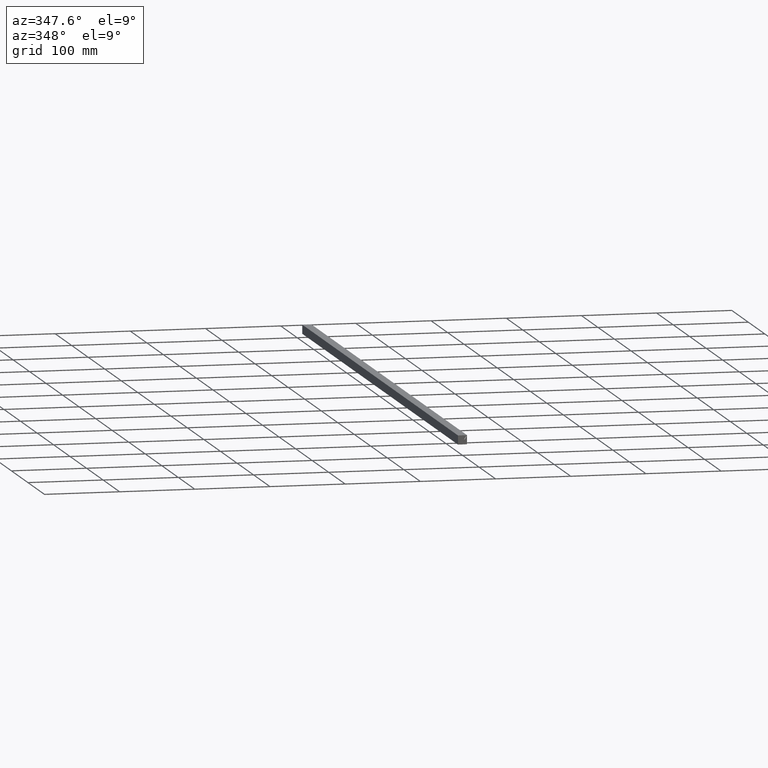
[diagram: clean part render]
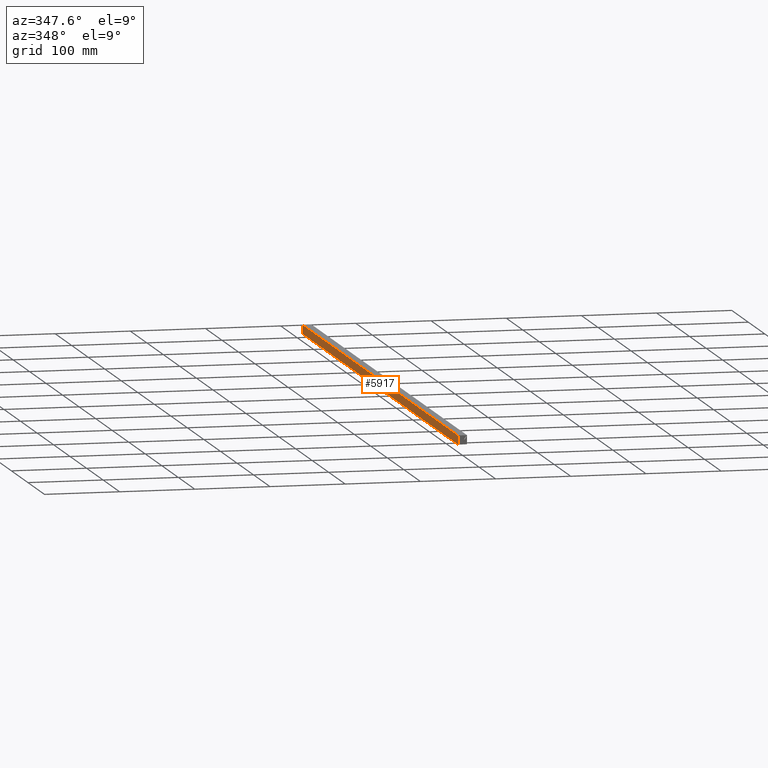
[diagram: same view with one face highlighted and labeled with its STEP entity id]
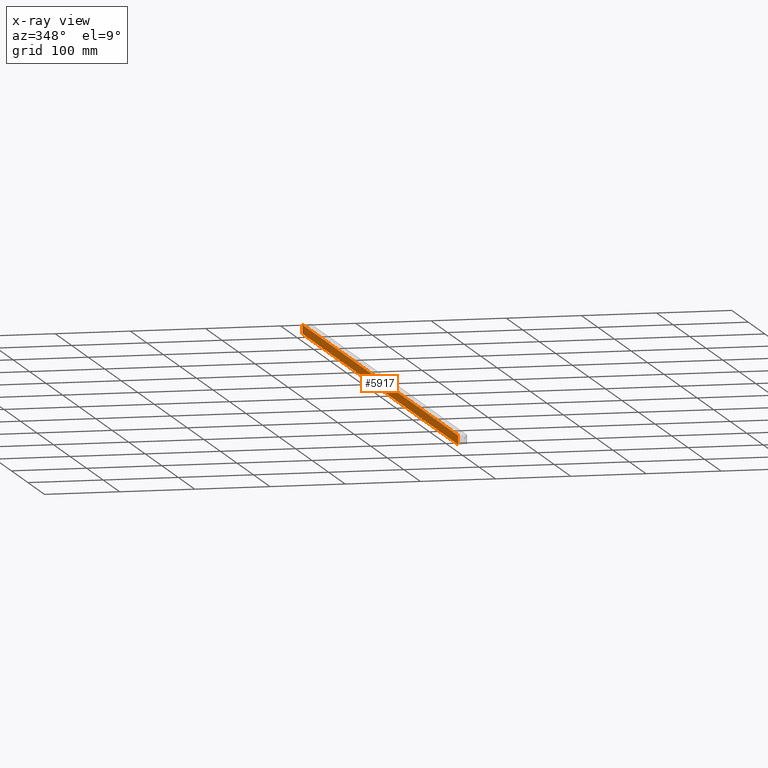
[diagram: x-ray of the same camera — body ghosted, the highlighted face saturated]
A machine part, auxiliary view. The second image highlights one B-rep face of the part: STEP entity #5917.
The next image is the same camera in x-ray: the body ghosted, the highlighted face saturated — about 0% of this face is hidden behind the body in this view.
In plain terms, the highlighted planar face has unit normal (1, 0, -0).
Its self-contained STEP definition (entity closure, byte-faithful):
#543 = CARTESIAN_POINT ( 'NONE',  ( -6.000000000000000888, 0.000000000000000000, -5.999999999999999112 ) ) ;
#666 = CARTESIAN_POINT ( 'NONE',  ( -6.000000000000172307, 942.2000000000000455, -6.000000000000063949 ) ) ;
#883 = VECTOR ( 'NONE', #4135, 1000.000000000000000 ) ;
#963 = VECTOR ( 'NONE', #2397, 1000.000000000000000 ) ;
#1549 = ORIENTED_EDGE ( 'NONE', *, *, #6795, .T. ) ;
#1742 = VERTEX_POINT ( 'NONE', #666 ) ;
#2397 = DIRECTION ( 'NONE',  ( 1.445602896647339410E-16, 0.000000000000000000, 1.000000000000000000 ) ) ;
#2939 = VECTOR ( 'NONE', #7121, 1000.000000000000000 ) ;
#3049 = VECTOR ( 'NONE', #4615, 1000.000000000000000 ) ;
#3135 = VERTEX_POINT ( 'NONE', #9192 ) ;
#3156 = LINE ( 'NONE', #5046, #963 ) ;
#3720 = CARTESIAN_POINT ( 'NONE',  ( -5.999999999999999112, 0.000000000000000000, 5.999999999999999112 ) ) ;
#3744 = CARTESIAN_POINT ( 'NONE',  ( -6.000000000000000888, 950.2000000000000455, -5.999999999999999112 ) ) ;
#4135 = DIRECTION ( 'NONE',  ( -0.000000000000000000, -1.000000000000000000, -0.000000000000000000 ) ) ;
#4564 = ORIENTED_EDGE ( 'NONE', *, *, #10418, .F. ) ;
#4615 = DIRECTION ( 'NONE',  ( -0.000000000000000000, -1.000000000000000000, -0.000000000000000000 ) ) ;
#4737 = AXIS2_PLACEMENT_3D ( 'NONE', #7878, #7497, #6238 ) ;
#4803 = EDGE_CURVE ( 'NONE', #1742, #3135, #8504, .T. ) ;
#5046 = CARTESIAN_POINT ( 'NONE',  ( -6.000000000000000888, 0.000000000000000000, -5.999999999999999112 ) ) ;
#5544 = LINE ( 'NONE', #6678, #883 ) ;
#5748 = VERTEX_POINT ( 'NONE', #3720 ) ;
#5917 = ADVANCED_FACE ( 'NONE', ( #7383 ), #7843, .F. ) ;
#6238 = DIRECTION ( 'NONE',  ( -1.445602896647339410E-16, 0.000000000000000000, -1.000000000000000000 ) ) ;
#6678 = CARTESIAN_POINT ( 'NONE',  ( -5.999999999999999112, 950.2000000000000455, 5.999999999999999112 ) ) ;
#6795 = EDGE_CURVE ( 'NONE', #1742, #8581, #9301, .T. ) ;
#7010 = ORIENTED_EDGE ( 'NONE', *, *, #4803, .F. ) ;
#7121 = DIRECTION ( 'NONE',  ( -0.000000000000000000, -0.000000000000000000, 1.000000000000000000 ) ) ;
#7383 = FACE_OUTER_BOUND ( 'NONE', #9096, .T. ) ;
#7497 = DIRECTION ( 'NONE',  ( 1.000000000000000000, 0.000000000000000000, -1.445602896647339410E-16 ) ) ;
#7843 = PLANE ( 'NONE',  #4737 ) ;
#7878 = CARTESIAN_POINT ( 'NONE',  ( -6.000000000000000888, 950.2000000000000455, -5.999999999999999112 ) ) ;
#8105 = ORIENTED_EDGE ( 'NONE', *, *, #8674, .T. ) ;
#8504 = LINE ( 'NONE', #9771, #2939 ) ;
#8581 = VERTEX_POINT ( 'NONE', #543 ) ;
#8674 = EDGE_CURVE ( 'NONE', #8581, #5748, #3156, .T. ) ;
#9096 = EDGE_LOOP ( 'NONE', ( #7010, #1549, #8105, #4564 ) ) ;
#9192 = CARTESIAN_POINT ( 'NONE',  ( -6.000000000000143885, 942.2000000000000455, 5.999999999999999112 ) ) ;
#9301 = LINE ( 'NONE', #3744, #3049 ) ;
#9771 = CARTESIAN_POINT ( 'NONE',  ( -5.999999999999999112, 942.2000000000000455, -944.0000000000000000 ) ) ;
#10418 = EDGE_CURVE ( 'NONE', #3135, #5748, #5544, .T. ) ;